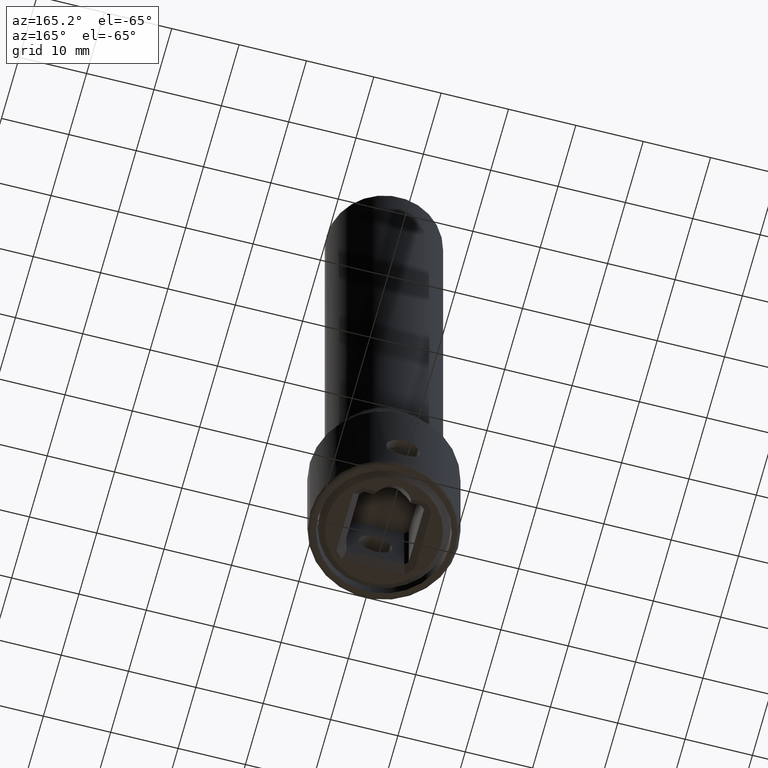
[diagram: clean part render]
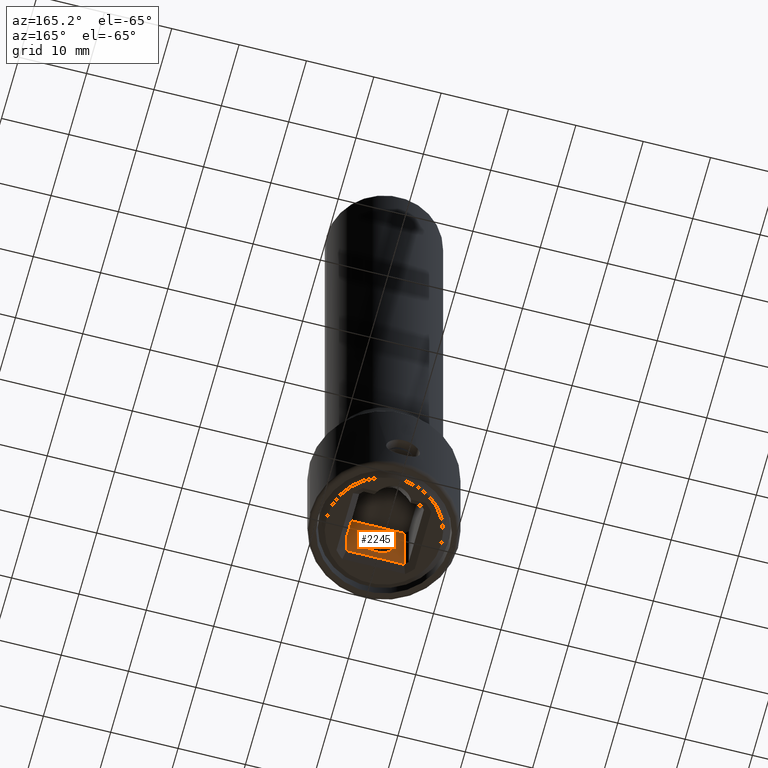
[diagram: same view with one face highlighted and labeled with its STEP entity id]
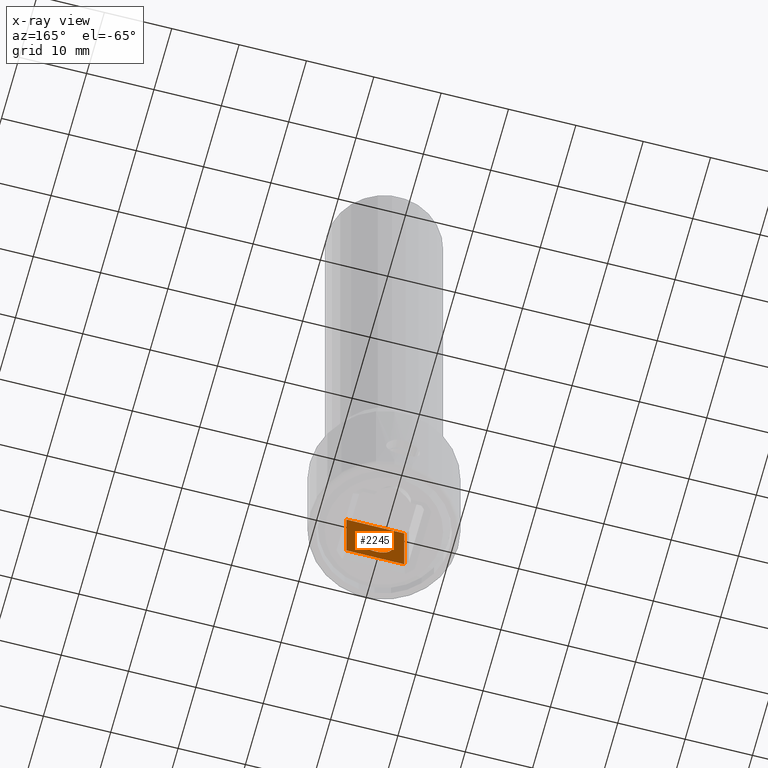
[diagram: x-ray of the same camera — body ghosted, the highlighted face saturated]
A machine part, auxiliary view. The second image highlights one B-rep face of the part: STEP entity #2245.
The next image is the same camera in x-ray: the body ghosted, the highlighted face saturated — about 0% of this face is hidden behind the body in this view.
In plain terms, the highlighted planar face has unit normal (0, -1, 0).
Its self-contained STEP definition (entity closure, byte-faithful):
#346=DIRECTION('',(-1.E0,0.E0,0.E0));
#347=VECTOR('',#346,8.588910000693E0);
#348=CARTESIAN_POINT('',(4.294455000346E0,-4.8125E0,1.15E1));
#349=LINE('',#348,#347);
#459=DIRECTION('',(1.E0,2.075696496412E-7,2.105367552836E-7));
#460=VECTOR('',#459,8.588909282454E0);
#461=CARTESIAN_POINT('',(-4.294455000260E0,-4.812499999786E0,1.000000000217E0));
#462=LINE('',#461,#460);
#463=DIRECTION('',(6.839549179004E-8,-1.698105758244E-7,1.E0));
#464=VECTOR('',#463,1.049999819150E1);
#465=CARTESIAN_POINT('',(4.294454282194E0,-4.812498216989E0,1.000001808498E0));
#466=LINE('',#465,#464);
#467=CARTESIAN_POINT('',(0.E0,-4.8125E0,5.5E0));
#468=DIRECTION('',(0.E0,1.E0,0.E0));
#469=DIRECTION('',(0.E0,0.E0,-1.E0));
#470=AXIS2_PLACEMENT_3D('',#467,#468,#469);
#472=CARTESIAN_POINT('',(0.E0,-4.8125E0,5.5E0));
#473=DIRECTION('',(0.E0,1.E0,0.E0));
#474=DIRECTION('',(0.E0,0.E0,1.E0));
#475=AXIS2_PLACEMENT_3D('',#472,#473,#474);
#482=DIRECTION('',(-8.202708353994E-12,-2.036652328309E-11,1.E0));
#483=VECTOR('',#482,1.049999999978E1);
#484=CARTESIAN_POINT('',(-4.294455000260E0,-4.812499999786E0,1.000000000217E0));
#485=LINE('',#484,#483);
#1596=CARTESIAN_POINT('',(4.294455000346E0,-4.8125E0,1.15E1));
#1597=VERTEX_POINT('',#1596);
#1598=CARTESIAN_POINT('',(-4.294455000346E0,-4.8125E0,1.15E1));
#1599=VERTEX_POINT('',#1598);
#1620=CARTESIAN_POINT('',(4.294455000346E0,-4.8125E0,1.E0));
#1621=VERTEX_POINT('',#1620);
#1624=CARTESIAN_POINT('',(-4.294455000260E0,-4.812499999786E0,
1.000000000217E0));
#1625=VERTEX_POINT('',#1624);
#1662=CARTESIAN_POINT('',(0.E0,-4.8125E0,3.E0));
#1663=CARTESIAN_POINT('',(0.E0,-4.8125E0,8.E0));
#1664=VERTEX_POINT('',#1662);
#1665=VERTEX_POINT('',#1663);
#2229=CARTESIAN_POINT('',(4.294455000346E0,-4.8125E0,0.E0));
#2230=DIRECTION('',(0.E0,-1.E0,0.E0));
#2231=DIRECTION('',(-1.E0,0.E0,0.E0));
#2232=AXIS2_PLACEMENT_3D('',#2229,#2230,#2231);
#2233=PLANE('',#2232);
#2234=ORIENTED_EDGE('',*,*,#2222,.T.);
#2235=ORIENTED_EDGE('',*,*,#2197,.T.);
#2236=ORIENTED_EDGE('',*,*,#2095,.T.);
#2238=ORIENTED_EDGE('',*,*,#2237,.F.);
#2239=EDGE_LOOP('',(#2234,#2235,#2236,#2238));
#2240=FACE_OUTER_BOUND('',#2239,.F.);
#2241=ORIENTED_EDGE('',*,*,#1888,.T.);
#2242=ORIENTED_EDGE('',*,*,#1963,.T.);
#2243=EDGE_LOOP('',(#2241,#2242));
#2244=FACE_BOUND('',#2243,.F.);
#2245=ADVANCED_FACE('',(#2240,#2244),#2233,.F.);
#471=CIRCLE('',#470,2.5E0);
#476=CIRCLE('',#475,2.5E0);
#1888=EDGE_CURVE('',#1664,#1665,#471,.T.);
#1963=EDGE_CURVE('',#1665,#1664,#476,.T.);
#2095=EDGE_CURVE('',#1597,#1599,#349,.T.);
#2197=EDGE_CURVE('',#1621,#1597,#466,.T.);
#2222=EDGE_CURVE('',#1625,#1621,#462,.T.);
#2237=EDGE_CURVE('',#1625,#1599,#485,.T.);